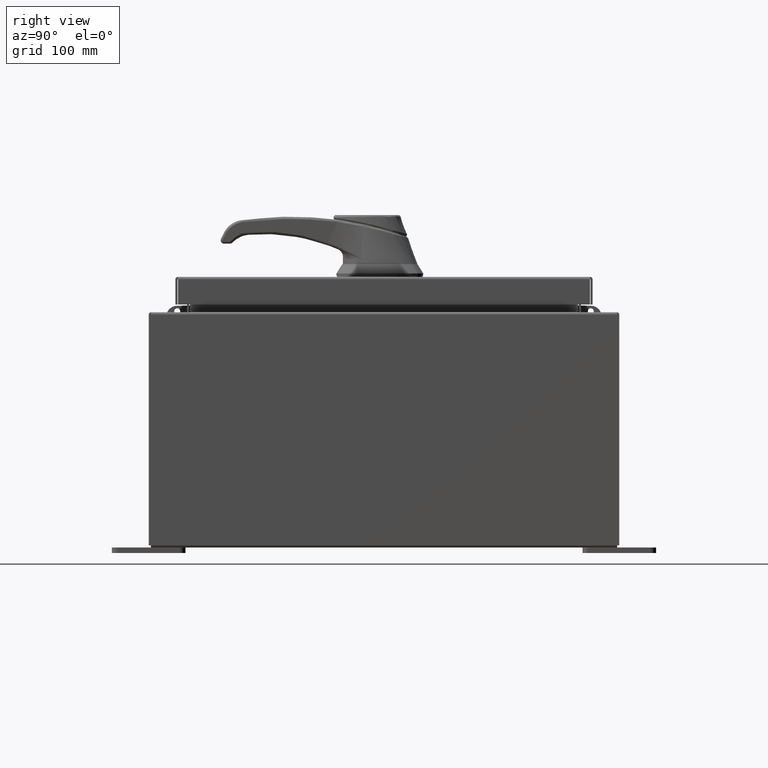
[diagram: clean part render]
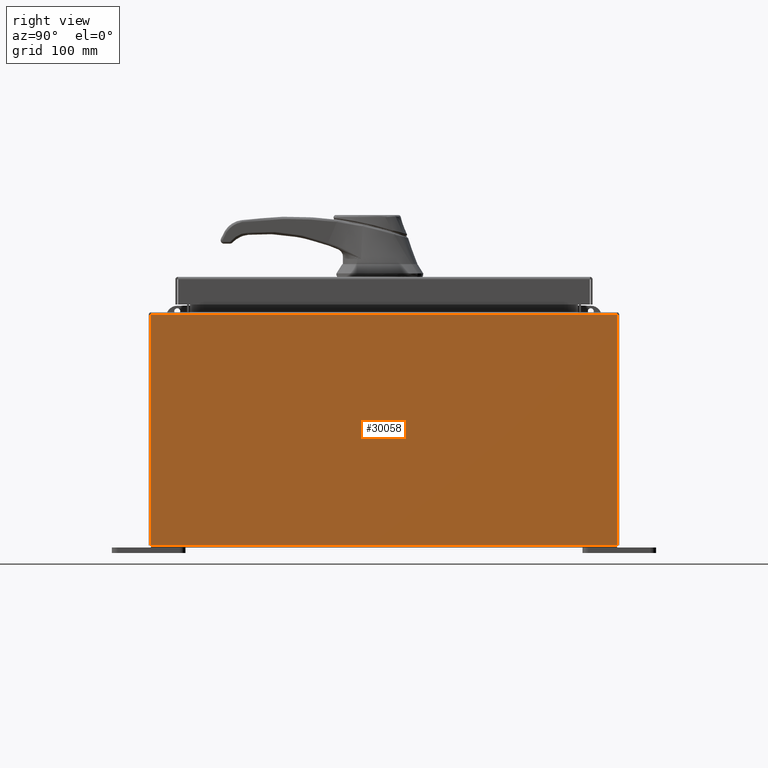
[diagram: same view with one face highlighted and labeled with its STEP entity id]
A machine part, right view. The second image highlights one B-rep face of the part: STEP entity #30058.
In plain terms, the highlighted planar face has unit normal (-1, 0, 0).
Its self-contained STEP definition (entity closure, byte-faithful):
#4462 = EDGE_LOOP ( 'NONE', ( #14191, #25158, #85382, #73963 ) ) ;
#6042 = CARTESIAN_POINT ( 'NONE',  ( 5.999999999999999100, -7.925300000000000000, 0.01299999999999984800 ) ) ;
#11132 = CARTESIAN_POINT ( 'NONE',  ( 5.999999999999999100, -7.925300000000000900, -1.985005237986820200E-014 ) ) ;
#11146 = AXIS2_PLACEMENT_3D ( 'NONE', #89889, #32703, #57377 ) ;
#13831 = CARTESIAN_POINT ( 'NONE',  ( 5.999999999999999100, 7.925300000000000000, 0.01299999999999984700 ) ) ;
#14191 = ORIENTED_EDGE ( 'NONE', *, *, #17085, .T. ) ;
#14970 = CARTESIAN_POINT ( 'NONE',  ( 6.000000000000029300, 7.925300000000000900, 7.837599999999992100 ) ) ;
#17085 = EDGE_CURVE ( 'NONE', #95528, #32987, #17306, .T. ) ;
#17306 = LINE ( 'NONE', #14970, #101683 ) ;
#24586 = VECTOR ( 'NONE', #67048, 39.37007874015748100 ) ;
#25158 = ORIENTED_EDGE ( 'NONE', *, *, #78461, .T. ) ;
#25967 = CARTESIAN_POINT ( 'NONE',  ( 5.999999999999999100, 7.925299999999998200, -2.094279157733390500E-014 ) ) ;
#27596 = DIRECTION ( 'NONE',  ( -3.446996320220387700E-015, -1.378798528088154900E-016, -1.000000000000000000 ) ) ;
#29365 = CARTESIAN_POINT ( 'NONE',  ( 6.000000000000026600, -7.925300000000000900, 7.837599999999998300 ) ) ;
#30058 = ADVANCED_FACE ( 'NONE', ( #97351 ), #49145, .F. ) ;
#30259 = VECTOR ( 'NONE', #27596, 39.37007874015748100 ) ;
#30381 = VECTOR ( 'NONE', #65159, 39.37007874015748100 ) ;
#32703 = DIRECTION ( 'NONE',  ( -1.000000000000000000, 0.0000000000000000000, 3.446996320220386900E-015 ) ) ;
#32987 = VERTEX_POINT ( 'NONE', #29365 ) ;
#35492 = LINE ( 'NONE', #48691, #30381 ) ;
#46353 = LINE ( 'NONE', #25967, #24586 ) ;
#48691 = CARTESIAN_POINT ( 'NONE',  ( 5.999999999999999100, -7.925300000000000000, 0.01299999999999984700 ) ) ;
#49145 = PLANE ( 'NONE',  #11146 ) ;
#53809 = VERTEX_POINT ( 'NONE', #13831 ) ;
#57377 = DIRECTION ( 'NONE',  ( 3.446996320220386900E-015, 0.0000000000000000000, 1.000000000000000000 ) ) ;
#65159 = DIRECTION ( 'NONE',  ( -0.0000000000000000000, -1.000000000000000000, -0.0000000000000000000 ) ) ;
#67048 = DIRECTION ( 'NONE',  ( 3.446996320220387700E-015, 0.0000000000000000000, 1.000000000000000000 ) ) ;
#69637 = EDGE_CURVE ( 'NONE', #53809, #95528, #46353, .T. ) ;
#73963 = ORIENTED_EDGE ( 'NONE', *, *, #69637, .T. ) ;
#78461 = EDGE_CURVE ( 'NONE', #32987, #89028, #100576, .T. ) ;
#79457 = CARTESIAN_POINT ( 'NONE',  ( 6.000000000000029300, 7.925300000000000900, 7.837599999999992100 ) ) ;
#80366 = DIRECTION ( 'NONE',  ( -0.0000000000000000000, -1.000000000000000000, -0.0000000000000000000 ) ) ;
#85382 = ORIENTED_EDGE ( 'NONE', *, *, #90945, .F. ) ;
#89028 = VERTEX_POINT ( 'NONE', #6042 ) ;
#89889 = CARTESIAN_POINT ( 'NONE',  ( 5.999999999999999100, 0.0000000000000000000, -2.094279157733390500E-014 ) ) ;
#90945 = EDGE_CURVE ( 'NONE', #53809, #89028, #35492, .T. ) ;
#95528 = VERTEX_POINT ( 'NONE', #79457 ) ;
#97351 = FACE_OUTER_BOUND ( 'NONE', #4462, .T. ) ;
#100576 = LINE ( 'NONE', #11132, #30259 ) ;
#101683 = VECTOR ( 'NONE', #80366, 39.37007874015748100 ) ;